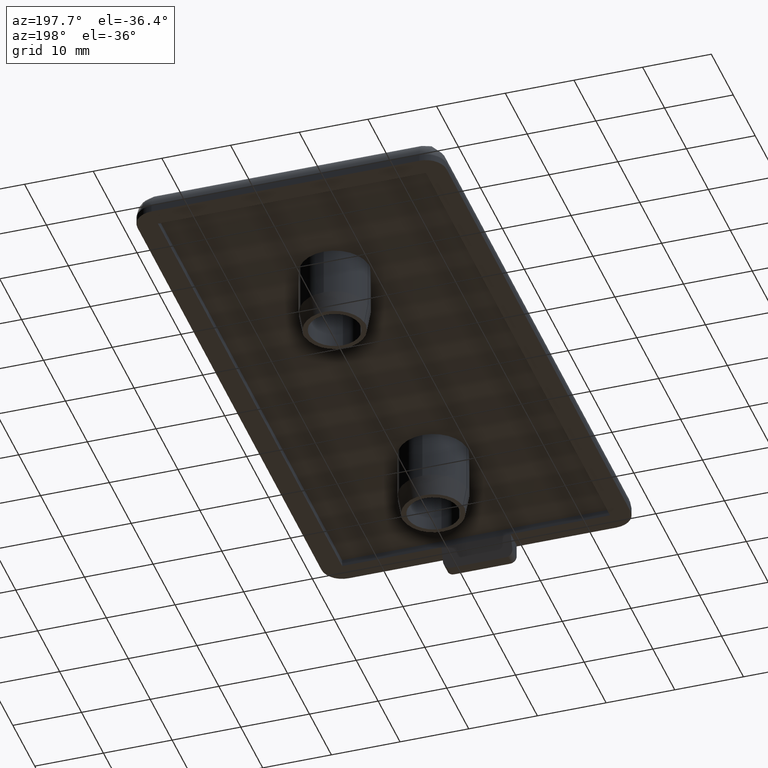
[diagram: clean part render]
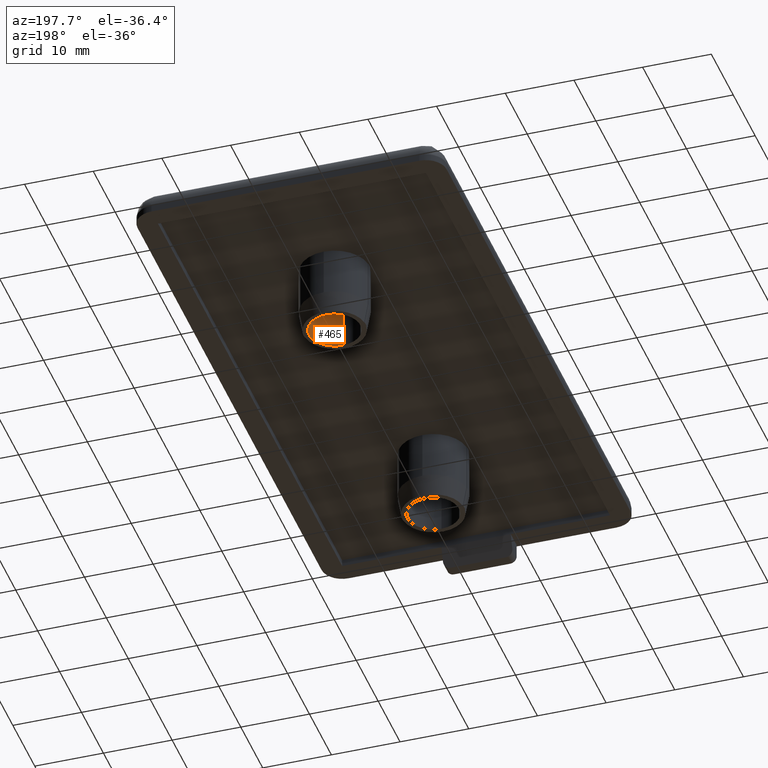
[diagram: same view with one face highlighted and labeled with its STEP entity id]
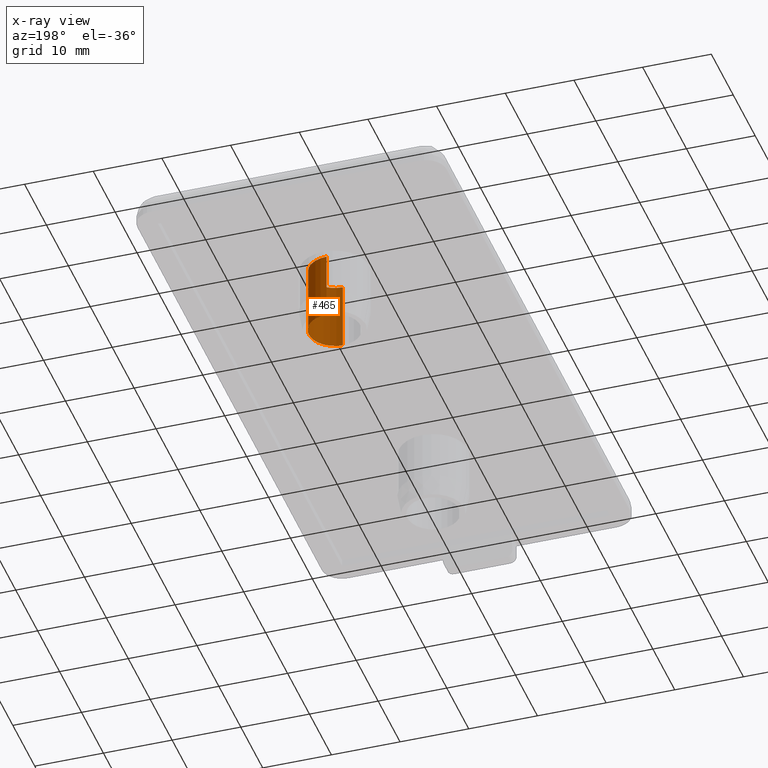
[diagram: x-ray of the same camera — body ghosted, the highlighted face saturated]
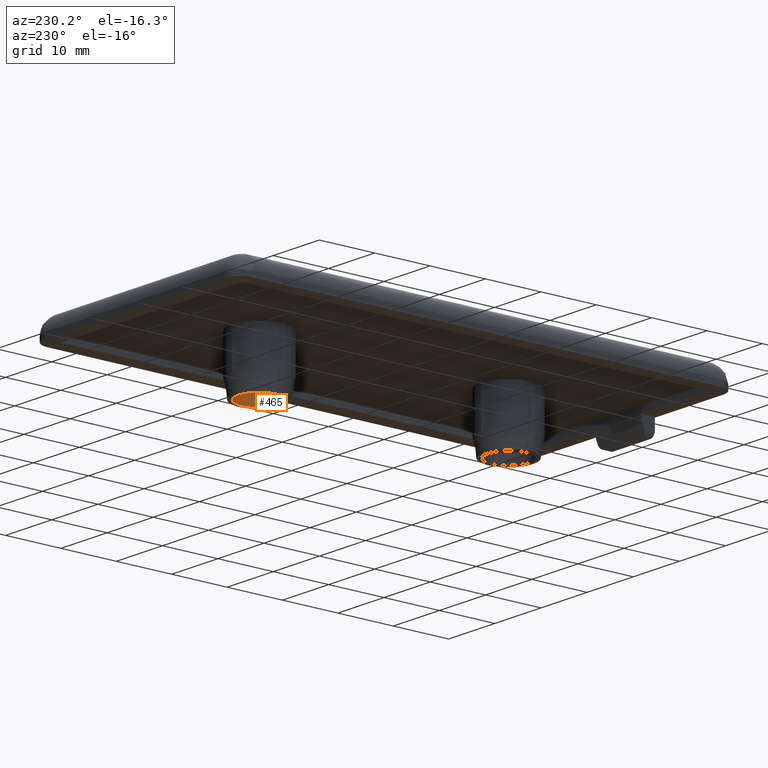
[diagram: same view with one face highlighted and labeled with its STEP entity id]
A machine part, auxiliary view. The second image highlights one B-rep face of the part: STEP entity #465.
The next image is the same camera in x-ray: the body ghosted, the highlighted face saturated — about 0% of this face is hidden behind the body in this view.
A second angle (auxiliary view) of the same face is appended — the face is thin or edge-on in the first view.
In plain terms, the highlighted cylindrical surface (edge-blend (fillet) strip) has radius 3.75 mm, axis along (-0, -0, -1).
Its self-contained STEP definition (entity closure, byte-faithful):
#15 = CARTESIAN_POINT ( 'NONE',  ( -3.663735981263019700E-014, 22.50000000000000000, -9.000000000000001800 ) ) ;
#61 = CARTESIAN_POINT ( 'NONE',  ( -3.617811726294994100E-014, 18.75000000000000000, -9.000000000000001800 ) ) ;
#115 = AXIS2_PLACEMENT_3D ( 'NONE', #15, #1599, #329 ) ;
#196 = ORIENTED_EDGE ( 'NONE', *, *, #1858, .F. ) ;
#243 = VERTEX_POINT ( 'NONE', #879 ) ;
#251 = ORIENTED_EDGE ( 'NONE', *, *, #1701, .F. ) ;
#329 = DIRECTION ( 'NONE',  ( 0.0000000000000000000, 1.000000000000000000, 0.0000000000000000000 ) ) ;
#369 = ORIENTED_EDGE ( 'NONE', *, *, #1720, .T. ) ;
#428 = VERTEX_POINT ( 'NONE', #1228 ) ;
#446 = AXIS2_PLACEMENT_3D ( 'NONE', #590, #2047, #1899 ) ;
#465 = ADVANCED_FACE ( 'NONE', ( #1980 ), #1204, .F. ) ;
#493 = CARTESIAN_POINT ( 'NONE',  ( -3.663735981263019700E-014, 22.50000000000000000, 0.9999999999999974500 ) ) ;
#506 = EDGE_CURVE ( 'NONE', #428, #945, #1529, .T. ) ;
#590 = CARTESIAN_POINT ( 'NONE',  ( -3.663735981263019700E-014, 22.50000000000000000, -9.000000000000001800 ) ) ;
#665 = DIRECTION ( 'NONE',  ( 0.0000000000000000000, 1.000000000000000000, -1.156482317317871500E-016 ) ) ;
#693 = DIRECTION ( 'NONE',  ( -2.719262146893779900E-032, -1.224646799147350000E-016, -1.000000000000000000 ) ) ;
#709 = ORIENTED_EDGE ( 'NONE', *, *, #506, .T. ) ;
#758 = VECTOR ( 'NONE', #693, 1000.000000000000000 ) ;
#879 = CARTESIAN_POINT ( 'NONE',  ( -3.617811726294994100E-014, 18.75000000000000000, -9.000000000000001800 ) ) ;
#945 = VERTEX_POINT ( 'NONE', #1044 ) ;
#965 = CIRCLE ( 'NONE', #115, 3.750000000000000000 ) ;
#986 = LINE ( 'NONE', #61, #758 ) ;
#1005 = VECTOR ( 'NONE', #1596, 1000.000000000000000 ) ;
#1016 = VERTEX_POINT ( 'NONE', #1568 ) ;
#1044 = CARTESIAN_POINT ( 'NONE',  ( -3.663735981263019700E-014, 26.25000000000000000, -9.000000000000001800 ) ) ;
#1165 = CIRCLE ( 'NONE', #2003, 3.750000000000000000 ) ;
#1204 = CYLINDRICAL_SURFACE ( 'NONE', #446, 3.750000000000000000 ) ;
#1228 = CARTESIAN_POINT ( 'NONE',  ( -3.663735981263019700E-014, 26.25000000000000000, 0.9999999999999970000 ) ) ;
#1305 = DIRECTION ( 'NONE',  ( -2.719262146893779900E-032, -1.224646799147350000E-016, -1.000000000000000000 ) ) ;
#1435 = CARTESIAN_POINT ( 'NONE',  ( -3.663735981263019700E-014, 26.25000000000000000, -9.000000000000001800 ) ) ;
#1529 = LINE ( 'NONE', #1435, #1005 ) ;
#1568 = CARTESIAN_POINT ( 'NONE',  ( -3.617811726294994100E-014, 18.75000000000000000, 0.9999999999999978900 ) ) ;
#1596 = DIRECTION ( 'NONE',  ( -2.719262146893779900E-032, -1.224646799147350000E-016, -1.000000000000000000 ) ) ;
#1599 = DIRECTION ( 'NONE',  ( -2.719262146893779900E-032, -1.224646799147350000E-016, -1.000000000000000000 ) ) ;
#1701 = EDGE_CURVE ( 'NONE', #428, #1016, #1165, .T. ) ;
#1720 = EDGE_CURVE ( 'NONE', #945, #243, #965, .T. ) ;
#1858 = EDGE_CURVE ( 'NONE', #1016, #243, #986, .T. ) ;
#1899 = DIRECTION ( 'NONE',  ( 0.0000000000000000000, 1.000000000000000000, 0.0000000000000000000 ) ) ;
#1967 = EDGE_LOOP ( 'NONE', ( #196, #251, #709, #369 ) ) ;
#1980 = FACE_OUTER_BOUND ( 'NONE', #1967, .T. ) ;
#2003 = AXIS2_PLACEMENT_3D ( 'NONE', #493, #1305, #665 ) ;
#2047 = DIRECTION ( 'NONE',  ( -2.719262146893779900E-032, -1.224646799147350000E-016, -1.000000000000000000 ) ) ;